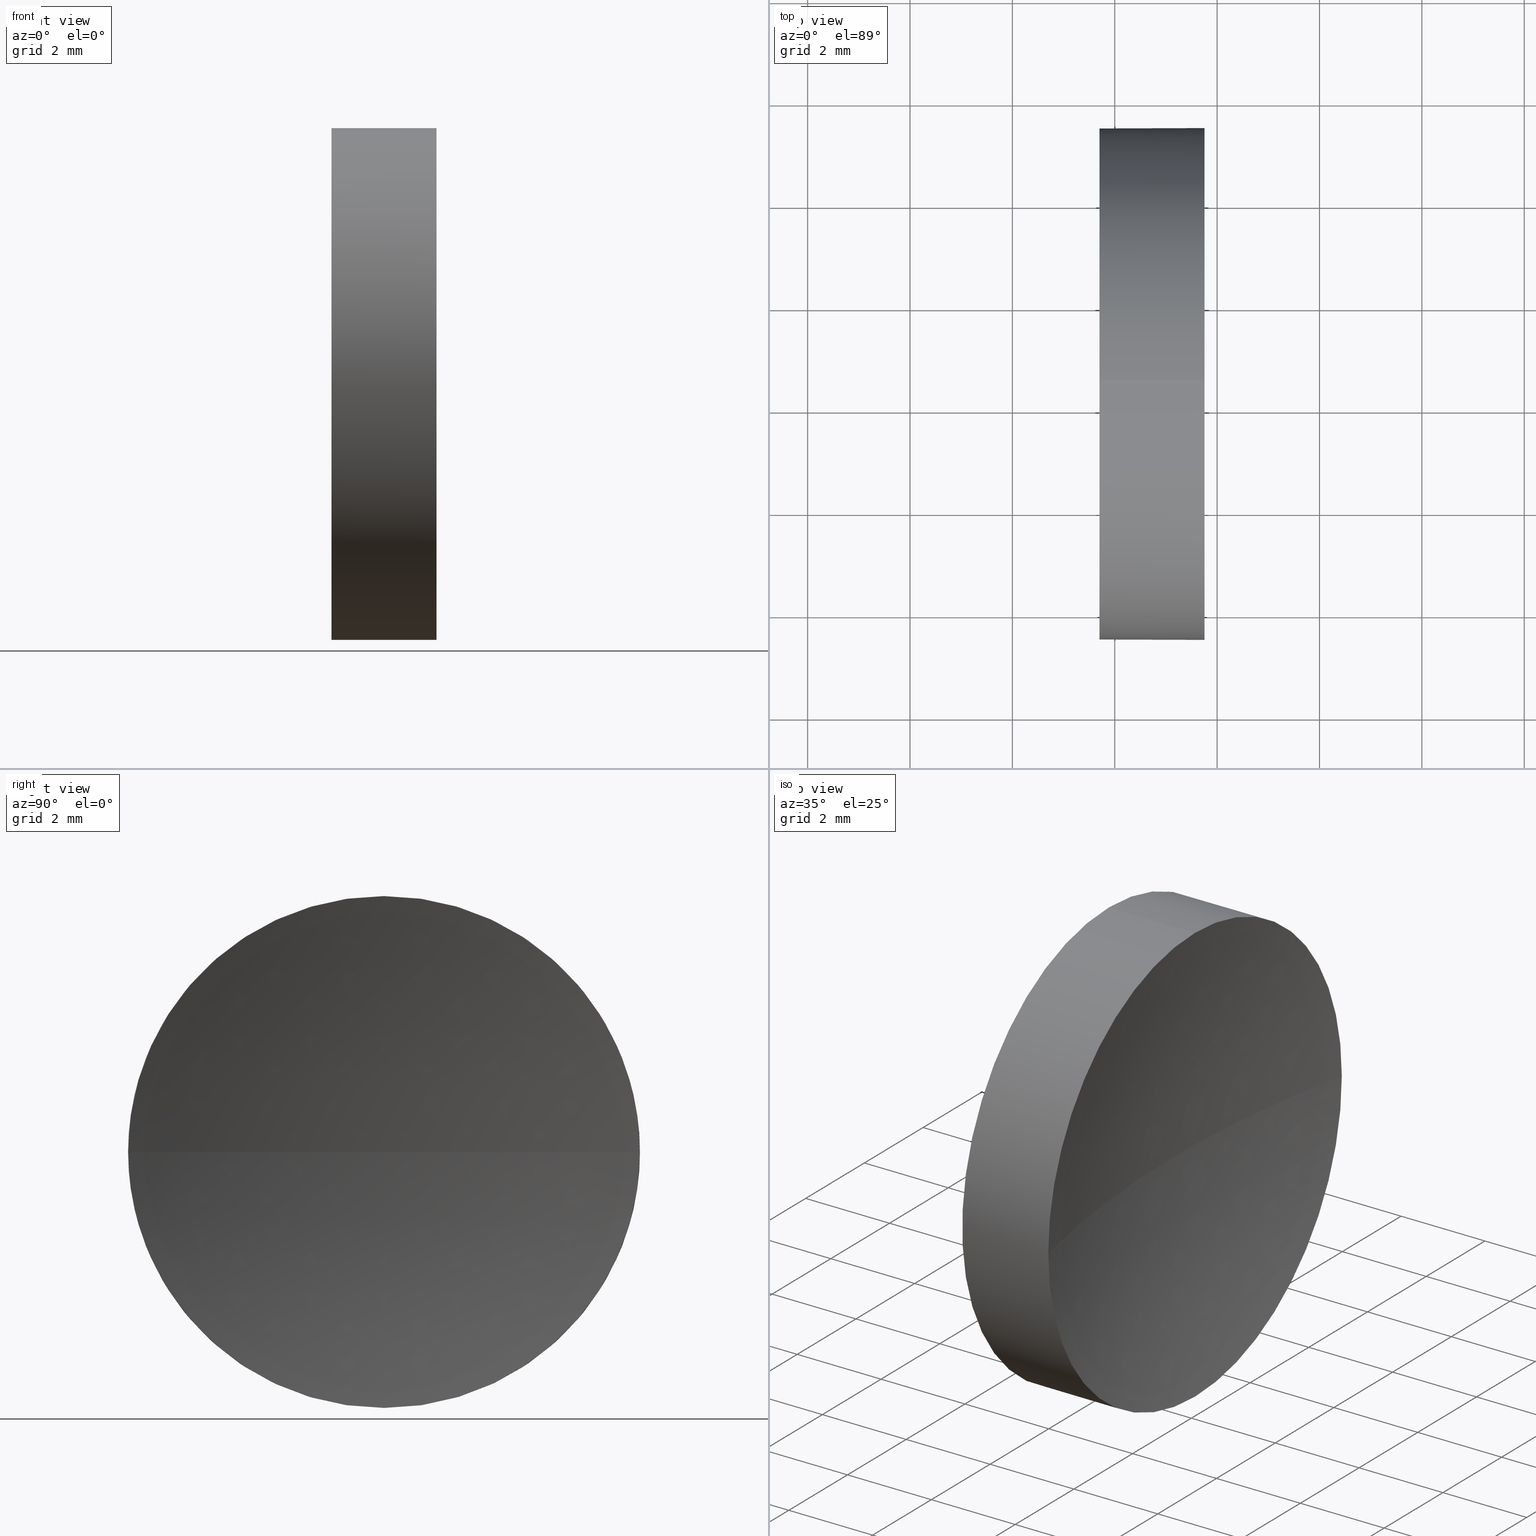
[diagram: canonical four-view strip — front | top / right | iso, engineering-drawing reading convention]
A machine part, canonical four-view strip (front | top / right | iso — engineering-drawing reading convention). The complete STEP part file that produces these views, byte-faithful:
ISO-10303-21;
HEADER;
FILE_DESCRIPTION (( 'STEP AP214' ),
    '1' );
FILE_NAME ('120256.STEP',
    '2019-06-25T01:19:05',
    ( '' ),
    ( '' ),
    'SwSTEP 2.0',
    'SolidWorks 2016',
    '' );
FILE_SCHEMA (( 'AUTOMOTIVE_DESIGN' ));
ENDSEC;

DATA;
#1 = ADVANCED_FACE ( 'NONE', ( #124 ), #78, .T. ) ;
#2 = ORIENTED_EDGE ( 'NONE', *, *, #66, .F. ) ;
#3 = ORIENTED_EDGE ( 'NONE', *, *, #24, .T. ) ;
#4 = CARTESIAN_POINT ( 'NONE',  ( 47.70171121220715100, 28.47759563463748100, 4.999999999999997300 ) ) ;
#5 = VERTEX_POINT ( 'NONE', #135 ) ;
#6 =( NAMED_UNIT ( * ) SI_UNIT ( $, .STERADIAN. ) SOLID_ANGLE_UNIT ( ) );
#7 = EDGE_LOOP ( 'NONE', ( #111, #86, #68, #11 ) ) ;
#8 = AXIS2_PLACEMENT_3D ( 'NONE', #81, #184, #158 ) ;
#9 = CARTESIAN_POINT ( 'NONE',  ( 49.75373410206150700, 28.47759563463748100, 0.0000000000000000000 ) ) ;
#10 = MANIFOLD_SOLID_BREP ( '��ת1', #152 ) ;
#11 = ORIENTED_EDGE ( 'NONE', *, *, #126, .T. ) ;
#12 = DIRECTION ( 'NONE',  ( 0.0000000000000000000, 1.000000000000000000, 0.0000000000000000000 ) ) ;
#13 =( NAMED_UNIT ( * ) SI_UNIT ( $, .STERADIAN. ) SOLID_ANGLE_UNIT ( ) );
#14 = LINE ( 'NONE', #171, #65 ) ;
#15 = PRODUCT_DEFINITION_SHAPE ( 'NONE', 'NONE',  #162 ) ;
#16 = DIRECTION ( 'NONE',  ( -1.000000000000000000, -0.0000000000000000000, -0.0000000000000000000 ) ) ;
#17 = ORIENTED_EDGE ( 'NONE', *, *, #25, .T. ) ;
#18 = CARTESIAN_POINT ( 'NONE',  ( 44.78209190302423800, 28.47759563463748100, 4.999999999999997300 ) ) ;
#19 = FILL_AREA_STYLE_COLOUR ( '', #155 ) ;
#20 = DIRECTION ( 'NONE',  ( -1.000000000000000000, -0.0000000000000000000, -0.0000000000000000000 ) ) ;
#21 = SPHERICAL_SURFACE ( 'NONE', #90, 22.91999999999999500 ) ;
#22 = PRESENTATION_STYLE_ASSIGNMENT (( #160 ) ) ;
#23 = DIRECTION ( 'NONE',  ( 0.0000000000000000000, 0.0000000000000000000, 1.000000000000000000 ) ) ;
#24 = EDGE_CURVE ( 'NONE', #129, #118, #138, .T. ) ;
#25 = EDGE_CURVE ( 'NONE', #54, #5, #120, .T. ) ;
#26 = DIRECTION ( 'NONE',  ( 1.000000000000000000, 0.0000000000000000000, 0.0000000000000000000 ) ) ;
#27 = FACE_OUTER_BOUND ( 'NONE', #131, .T. ) ;
#28 = CARTESIAN_POINT ( 'NONE',  ( 44.78209190302423800, 28.47759563463748100, 0.0000000000000000000 ) ) ;
#29 = DIRECTION ( 'NONE',  ( -1.000000000000000000, -0.0000000000000000000, -0.0000000000000000000 ) ) ;
#30 = VERTEX_POINT ( 'NONE', #59 ) ;
#31 = VECTOR ( 'NONE', #29, 1000.000000000000000 ) ;
#32 = VERTEX_POINT ( 'NONE', #49 ) ;
#33 =( NAMED_UNIT ( * ) PLANE_ANGLE_UNIT ( ) SI_UNIT ( $, .RADIAN. ) );
#34 = FILL_AREA_STYLE ('',( #84 ) ) ;
#35 = CARTESIAN_POINT ( 'NONE',  ( 0.0000000000000000000, 0.0000000000000000000, 0.0000000000000000000 ) ) ;
#36 =( GEOMETRIC_REPRESENTATION_CONTEXT ( 3 ) GLOBAL_UNCERTAINTY_ASSIGNED_CONTEXT ( ( #164 ) ) GLOBAL_UNIT_ASSIGNED_CONTEXT ( ( #72, #95, #6 ) ) REPRESENTATION_CONTEXT ( 'NONE', 'WORKASPACE' ) );
#37 = ADVANCED_FACE ( 'NONE', ( #27 ), #186, .T. ) ;
#38 = SURFACE_STYLE_FILL_AREA ( #34 ) ;
#39 = ORIENTED_EDGE ( 'NONE', *, *, #126, .F. ) ;
#40 = AXIS2_PLACEMENT_3D ( 'NONE', #50, #174, #12 ) ;
#41 = CARTESIAN_POINT ( 'NONE',  ( 47.70171121220715100, 28.47759563463748100, 0.0000000000000000000 ) ) ;
#42 = DIRECTION ( 'NONE',  ( 0.0000000000000000000, 0.0000000000000000000, 1.000000000000000000 ) ) ;
#43 = EDGE_LOOP ( 'NONE', ( #173, #45, #79, #139, #156 ) ) ;
#44 = DIRECTION ( 'NONE',  ( 0.0000000000000000000, 1.000000000000000000, 0.0000000000000000000 ) ) ;
#45 = ORIENTED_EDGE ( 'NONE', *, *, #56, .T. ) ;
#46 = CIRCLE ( 'NONE', #168, 4.999999999999997300 ) ;
#47 = EDGE_LOOP ( 'NONE', ( #163, #99, #39, #2 ) ) ;
#48 = DIRECTION ( 'NONE',  ( -1.000000000000000000, -0.0000000000000000000, -0.0000000000000000000 ) ) ;
#49 = CARTESIAN_POINT ( 'NONE',  ( 47.70171121220715100, 28.47759563463748100, -4.999999999999997300 ) ) ;
#50 = CARTESIAN_POINT ( 'NONE',  ( 72.12171121220716000, 28.47759563463747400, 0.0000000000000000000 ) ) ;
#51 = SURFACE_SIDE_STYLE ('',( #38 ) ) ;
#52 = ORIENTED_EDGE ( 'NONE', *, *, #77, .F. ) ;
#53 = CIRCLE ( 'NONE', #183, 22.91999999999999800 ) ;
#54 = VERTEX_POINT ( 'NONE', #119 ) ;
#55 = DIRECTION ( 'NONE',  ( 0.0000000000000000000, 0.0000000000000000000, 1.000000000000000000 ) ) ;
#56 = EDGE_CURVE ( 'NONE', #54, #32, #14, .T. ) ;
#57 = CARTESIAN_POINT ( 'NONE',  ( 49.20171121220716500, 28.47759563463747400, 0.0000000000000000000 ) ) ;
#58 =( GEOMETRIC_REPRESENTATION_CONTEXT ( 3 ) GLOBAL_UNCERTAINTY_ASSIGNED_CONTEXT ( ( #121 ) ) GLOBAL_UNIT_ASSIGNED_CONTEXT ( ( #185, #63, #13 ) ) REPRESENTATION_CONTEXT ( 'NONE', 'WORKASPACE' ) );
#59 = CARTESIAN_POINT ( 'NONE',  ( 49.75373410206150700, 33.47759563463747400, 0.0000000000000000000 ) ) ;
#60 = STYLED_ITEM ( 'NONE', ( #22 ), #87 ) ;
#61 = CARTESIAN_POINT ( 'NONE',  ( 44.78209190302423800, 28.47759563463748100, 0.0000000000000000000 ) ) ;
#62 = FACE_OUTER_BOUND ( 'NONE', #7, .T. ) ;
#63 =( NAMED_UNIT ( * ) PLANE_ANGLE_UNIT ( ) SI_UNIT ( $, .RADIAN. ) );
#64 = STYLED_ITEM ( 'NONE', ( #110 ), #10 ) ;
#65 = VECTOR ( 'NONE', #20, 1000.000000000000000 ) ;
#66 = EDGE_CURVE ( 'NONE', #129, #30, #46, .T. ) ;
#67 = ORIENTED_EDGE ( 'NONE', *, *, #104, .T. ) ;
#68 = ORIENTED_EDGE ( 'NONE', *, *, #134, .F. ) ;
#69 = AXIS2_PLACEMENT_3D ( 'NONE', #166, #145, #115 ) ;
#70 = CARTESIAN_POINT ( 'NONE',  ( 72.12171121220716000, 28.47759563463747400, 0.0000000000000000000 ) ) ;
#71 = ORIENTED_EDGE ( 'NONE', *, *, #109, .T. ) ;
#72 =( LENGTH_UNIT ( ) NAMED_UNIT ( * ) SI_UNIT ( .MILLI., .METRE. ) );
#73 = VERTEX_POINT ( 'NONE', #57 ) ;
#74 = DIRECTION ( 'NONE',  ( -1.000000000000000000, -0.0000000000000000000, -0.0000000000000000000 ) ) ;
#75 = APPLICATION_PROTOCOL_DEFINITION ( 'draft international standard', 'automotive_design', 1998, #136 ) ;
#76 = AXIS2_PLACEMENT_3D ( 'NONE', #28, #74, #169 ) ;
#77 = EDGE_CURVE ( 'NONE', #32, #118, #182, .T. ) ;
#78 = CYLINDRICAL_SURFACE ( 'NONE', #76, 4.999999999999997300 ) ;
#79 = ORIENTED_EDGE ( 'NONE', *, *, #109, .F. ) ;
#80 = CIRCLE ( 'NONE', #130, 4.999999999999997300 ) ;
#81 = CARTESIAN_POINT ( 'NONE',  ( 49.75373410206150700, 28.47759563463748100, 0.0000000000000000000 ) ) ;
#82 = PRESENTATION_LAYER_ASSIGNMENT (  '', '', ( #60 ) ) ;
#83 = APPLICATION_PROTOCOL_DEFINITION ( 'draft international standard', 'automotive_design', 1998, #128 ) ;
#84 = FILL_AREA_STYLE_COLOUR ( '', #96 ) ;
#85 = SURFACE_STYLE_FILL_AREA ( #97 ) ;
#86 = ORIENTED_EDGE ( 'NONE', *, *, #25, .F. ) ;
#87 = ADVANCED_BREP_SHAPE_REPRESENTATION ( '120256', ( #10, #141 ), #132 ) ;
#88 = ADVANCED_FACE ( 'NONE', ( #62 ), #21, .F. ) ;
#89 = DIRECTION ( 'NONE',  ( 0.0000000000000000000, 1.224646799147353200E-016, -1.000000000000000000 ) ) ;
#90 = AXIS2_PLACEMENT_3D ( 'NONE', #116, #180, #44 ) ;
#91 = DIRECTION ( 'NONE',  ( 0.0000000000000000000, 0.0000000000000000000, -1.000000000000000000 ) ) ;
#92 = ORIENTED_EDGE ( 'NONE', *, *, #56, .F. ) ;
#93 = CARTESIAN_POINT ( 'NONE',  ( 72.12171121220716000, 28.47759563463747400, 0.0000000000000000000 ) ) ;
#94 = AXIS2_PLACEMENT_3D ( 'NONE', #61, #137, #107 ) ;
#95 =( NAMED_UNIT ( * ) PLANE_ANGLE_UNIT ( ) SI_UNIT ( $, .RADIAN. ) );
#96 = COLOUR_RGB ( '',1.000000000000000000, 1.000000000000000000, 1.000000000000000000 ) ;
#97 = FILL_AREA_STYLE ('',( #19 ) ) ;
#98 = CARTESIAN_POINT ( 'NONE',  ( 49.75373410206150700, 28.47759563463748100, 0.0000000000000000000 ) ) ;
#99 = ORIENTED_EDGE ( 'NONE', *, *, #117, .T. ) ;
#100 = CARTESIAN_POINT ( 'NONE',  ( 49.75373410206150700, 28.47759563463748100, 4.999999999999997300 ) ) ;
#101 = PRODUCT_DEFINITION_CONTEXT ( 'detailed design', #136, 'design' ) ;
#102 = AXIS2_PLACEMENT_3D ( 'NONE', #93, #23, #112 ) ;
#103 = ADVANCED_FACE ( 'NONE', ( #167 ), #178, .F. ) ;
#104 = EDGE_CURVE ( 'NONE', #5, #129, #179, .T. ) ;
#105 = CARTESIAN_POINT ( 'NONE',  ( 47.70171121220715100, 28.47759563463748100, 0.0000000000000000000 ) ) ;
#106 = PRODUCT_CONTEXT ( 'NONE', #128, 'mechanical' ) ;
#107 = DIRECTION ( 'NONE',  ( 0.0000000000000000000, 0.0000000000000000000, 1.000000000000000000 ) ) ;
#108 = FACE_OUTER_BOUND ( 'NONE', #47, .T. ) ;
#109 = EDGE_CURVE ( 'NONE', #118, #32, #80, .T. ) ;
#110 = PRESENTATION_STYLE_ASSIGNMENT (( #148 ) ) ;
#111 = ORIENTED_EDGE ( 'NONE', *, *, #117, .F. ) ;
#112 = DIRECTION ( 'NONE',  ( 1.000000000000000000, 0.0000000000000000000, 0.0000000000000000000 ) ) ;
#113 = SHAPE_DEFINITION_REPRESENTATION ( #15, #87 ) ;
#114 = ORIENTED_EDGE ( 'NONE', *, *, #77, .T. ) ;
#115 = DIRECTION ( 'NONE',  ( 0.0000000000000000000, 0.0000000000000000000, 1.000000000000000000 ) ) ;
#116 = CARTESIAN_POINT ( 'NONE',  ( 72.12171121220716000, 28.47759563463747400, 0.0000000000000000000 ) ) ;
#117 = EDGE_CURVE ( 'NONE', #5, #73, #53, .T. ) ;
#118 = VERTEX_POINT ( 'NONE', #4 ) ;
#119 = CARTESIAN_POINT ( 'NONE',  ( 49.75373410206150700, 28.47759563463748100, -4.999999999999997300 ) ) ;
#120 = CIRCLE ( 'NONE', #150, 4.999999999999997300 ) ;
#121 = UNCERTAINTY_MEASURE_WITH_UNIT (LENGTH_MEASURE( 1.000000000000000100E-005 ), #185, 'distance_accuracy_value', 'NONE');
#122 = MECHANICAL_DESIGN_GEOMETRIC_PRESENTATION_REPRESENTATION (  '', ( #60 ), #58 ) ;
#123 = DIRECTION ( 'NONE',  ( -1.000000000000000000, -0.0000000000000000000, -0.0000000000000000000 ) ) ;
#124 = FACE_OUTER_BOUND ( 'NONE', #43, .T. ) ;
#125 = CIRCLE ( 'NONE', #102, 22.91999999999999500 ) ;
#126 = EDGE_CURVE ( 'NONE', #30, #73, #125, .T. ) ;
#127 = PRODUCT ( '120256', '120256', '', ( #106 ) ) ;
#128 = APPLICATION_CONTEXT ( 'automotive_design' ) ;
#129 = VERTEX_POINT ( 'NONE', #100 ) ;
#130 = AXIS2_PLACEMENT_3D ( 'NONE', #105, #16, #42 ) ;
#131 = EDGE_LOOP ( 'NONE', ( #92, #17, #67, #3, #52 ) ) ;
#132 =( GEOMETRIC_REPRESENTATION_CONTEXT ( 3 ) GLOBAL_UNCERTAINTY_ASSIGNED_CONTEXT ( ( #177 ) ) GLOBAL_UNIT_ASSIGNED_CONTEXT ( ( #140, #33, #175 ) ) REPRESENTATION_CONTEXT ( 'NONE', 'WORKASPACE' ) );
#133 = DIRECTION ( 'NONE',  ( -1.000000000000000000, -0.0000000000000000000, -0.0000000000000000000 ) ) ;
#134 = EDGE_CURVE ( 'NONE', #30, #54, #146, .T. ) ;
#135 = CARTESIAN_POINT ( 'NONE',  ( 49.75373410206150700, 23.47759563463748100, -6.123233995736758400E-016 ) ) ;
#136 = APPLICATION_CONTEXT ( 'automotive_design' ) ;
#137 = DIRECTION ( 'NONE',  ( -1.000000000000000000, -0.0000000000000000000, -0.0000000000000000000 ) ) ;
#138 = LINE ( 'NONE', #18, #31 ) ;
#139 = ORIENTED_EDGE ( 'NONE', *, *, #24, .F. ) ;
#140 =( LENGTH_UNIT ( ) NAMED_UNIT ( * ) SI_UNIT ( .MILLI., .METRE. ) );
#141 = AXIS2_PLACEMENT_3D ( 'NONE', #35, #159, #142 ) ;
#142 = DIRECTION ( 'NONE',  ( 1.000000000000000000, 0.0000000000000000000, 0.0000000000000000000 ) ) ;
#143 = SPHERICAL_SURFACE ( 'NONE', #40, 22.91999999999999500 ) ;
#144 = PRESENTATION_LAYER_ASSIGNMENT (  '', '', ( #64 ) ) ;
#145 = DIRECTION ( 'NONE',  ( -1.000000000000000000, -0.0000000000000000000, -0.0000000000000000000 ) ) ;
#146 = CIRCLE ( 'NONE', #8, 4.999999999999997300 ) ;
#147 = CARTESIAN_POINT ( 'NONE',  ( 49.75373410206150700, 28.47759563463748100, 0.0000000000000000000 ) ) ;
#148 = SURFACE_STYLE_USAGE ( .BOTH. , #170 ) ;
#149 = DIRECTION ( 'NONE',  ( 0.0000000000000000000, 1.000000000000000000, 1.224646799147353000E-016 ) ) ;
#150 = AXIS2_PLACEMENT_3D ( 'NONE', #98, #123, #154 ) ;
#151 = EDGE_LOOP ( 'NONE', ( #71, #114 ) ) ;
#152 = CLOSED_SHELL ( 'NONE', ( #1, #161, #88, #37, #103 ) ) ;
#153 = PRODUCT_RELATED_PRODUCT_CATEGORY ( 'part', '', ( #127 ) ) ;
#154 = DIRECTION ( 'NONE',  ( 0.0000000000000000000, 0.0000000000000000000, 1.000000000000000000 ) ) ;
#155 = COLOUR_RGB ( '',1.000000000000000000, 1.000000000000000000, 1.000000000000000000 ) ;
#156 = ORIENTED_EDGE ( 'NONE', *, *, #66, .T. ) ;
#157 = MECHANICAL_DESIGN_GEOMETRIC_PRESENTATION_REPRESENTATION (  '', ( #64 ), #36 ) ;
#158 = DIRECTION ( 'NONE',  ( 0.0000000000000000000, 0.0000000000000000000, 1.000000000000000000 ) ) ;
#159 = DIRECTION ( 'NONE',  ( 0.0000000000000000000, 0.0000000000000000000, 1.000000000000000000 ) ) ;
#160 = SURFACE_STYLE_USAGE ( .BOTH. , #51 ) ;
#161 = ADVANCED_FACE ( 'NONE', ( #108 ), #143, .F. ) ;
#162 = PRODUCT_DEFINITION ( 'δ֪', '', #172, #101 ) ;
#163 = ORIENTED_EDGE ( 'NONE', *, *, #104, .F. ) ;
#164 = UNCERTAINTY_MEASURE_WITH_UNIT (LENGTH_MEASURE( 1.000000000000000100E-005 ), #72, 'distance_accuracy_value', 'NONE');
#165 = DIRECTION ( 'NONE',  ( 0.0000000000000000000, 0.0000000000000000000, 1.000000000000000000 ) ) ;
#166 = CARTESIAN_POINT ( 'NONE',  ( 47.70171121220715100, 28.47759563463748100, 0.0000000000000000000 ) ) ;
#167 = FACE_OUTER_BOUND ( 'NONE', #151, .T. ) ;
#168 = AXIS2_PLACEMENT_3D ( 'NONE', #9, #48, #165 ) ;
#169 = DIRECTION ( 'NONE',  ( 0.0000000000000000000, 0.0000000000000000000, 1.000000000000000000 ) ) ;
#170 = SURFACE_SIDE_STYLE ('',( #85 ) ) ;
#171 = CARTESIAN_POINT ( 'NONE',  ( 44.78209190302423800, 28.47759563463748100, -4.999999999999997300 ) ) ;
#172 = PRODUCT_DEFINITION_FORMATION_WITH_SPECIFIED_SOURCE ( '�κ�', '', #127, .NOT_KNOWN. ) ;
#173 = ORIENTED_EDGE ( 'NONE', *, *, #134, .T. ) ;
#174 = DIRECTION ( 'NONE',  ( 0.0000000000000000000, 0.0000000000000000000, -1.000000000000000000 ) ) ;
#175 =( NAMED_UNIT ( * ) SI_UNIT ( $, .STERADIAN. ) SOLID_ANGLE_UNIT ( ) );
#176 = AXIS2_PLACEMENT_3D ( 'NONE', #147, #133, #55 ) ;
#177 = UNCERTAINTY_MEASURE_WITH_UNIT (LENGTH_MEASURE( 1.000000000000000100E-005 ), #140, 'distance_accuracy_value', 'NONE');
#178 = PLANE ( 'NONE',  #181 ) ;
#179 = CIRCLE ( 'NONE', #176, 4.999999999999997300 ) ;
#180 = DIRECTION ( 'NONE',  ( 0.0000000000000000000, 0.0000000000000000000, -1.000000000000000000 ) ) ;
#181 = AXIS2_PLACEMENT_3D ( 'NONE', #41, #26, #91 ) ;
#182 = CIRCLE ( 'NONE', #69, 4.999999999999997300 ) ;
#183 = AXIS2_PLACEMENT_3D ( 'NONE', #70, #89, #149 ) ;
#184 = DIRECTION ( 'NONE',  ( -1.000000000000000000, -0.0000000000000000000, -0.0000000000000000000 ) ) ;
#185 =( LENGTH_UNIT ( ) NAMED_UNIT ( * ) SI_UNIT ( .MILLI., .METRE. ) );
#186 = CYLINDRICAL_SURFACE ( 'NONE', #94, 4.999999999999997300 ) ;
ENDSEC;
END-ISO-10303-21;
